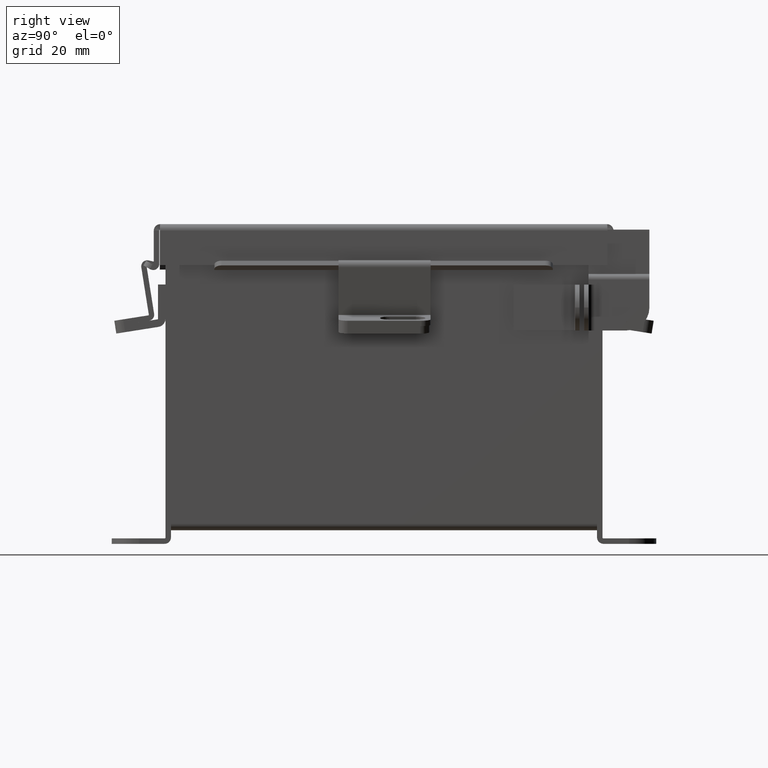
[diagram: clean part render]
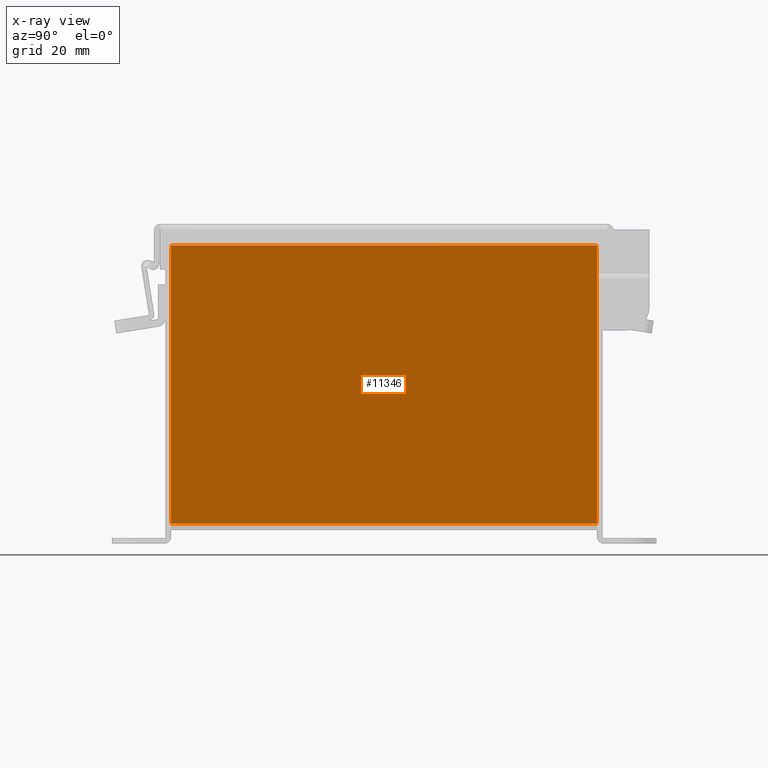
[diagram: x-ray — body ghosted, one internal face saturated and labeled with its STEP entity id]
A machine part, right view, then the same camera in x-ray: the body is ghosted and one INTERNAL B-rep face — a face not visible from any outside direction — is saturated and labeled: STEP entity #11346.
In plain terms, the highlighted planar face has unit normal (-1, 0, 0).
Its self-contained STEP definition (entity closure, byte-faithful):
#168 = DIRECTION ( 'NONE',  ( -1.000000000000000000, 0.0000000000000000000, 3.476355676765930200E-015 ) ) ;
#1407 = EDGE_CURVE ( 'NONE', #2479, #11766, #8981, .T. ) ;
#1648 = LINE ( 'NONE', #8946, #13165 ) ;
#1693 = LINE ( 'NONE', #9335, #10360 ) ;
#2449 = DIRECTION ( 'NONE',  ( 3.476355676765930200E-015, -2.837841368788514100E-016, 1.000000000000000000 ) ) ;
#2479 = VERTEX_POINT ( 'NONE', #8390 ) ;
#2672 = DIRECTION ( 'NONE',  ( -3.476355676765930200E-015, -0.0000000000000000000, -1.000000000000000000 ) ) ;
#2828 = DIRECTION ( 'NONE',  ( 0.0000000000000000000, 1.000000000000000000, 0.0000000000000000000 ) ) ;
#3704 = CARTESIAN_POINT ( 'NONE',  ( 1.925300000000013600, 2.925299999999998200, 3.837599999999999700 ) ) ;
#3970 = CARTESIAN_POINT ( 'NONE',  ( 1.925299999999999600, 2.925299999999999100, 0.01299999999999983500 ) ) ;
#4287 = AXIS2_PLACEMENT_3D ( 'NONE', #13199, #168, #7819 ) ;
#4461 = VECTOR ( 'NONE', #4806, 39.37007874015748100 ) ;
#4806 = DIRECTION ( 'NONE',  ( -0.0000000000000000000, -1.000000000000000000, -0.0000000000000000000 ) ) ;
#4859 = CARTESIAN_POINT ( 'NONE',  ( 1.925300000000012900, 2.925299999999998200, 3.837599999999999700 ) ) ;
#5416 = ORIENTED_EDGE ( 'NONE', *, *, #11879, .F. ) ;
#5647 = PLANE ( 'NONE',  #4287 ) ;
#6126 = VECTOR ( 'NONE', #2672, 39.37007874015748100 ) ;
#6566 = ORIENTED_EDGE ( 'NONE', *, *, #10284, .F. ) ;
#7356 = LINE ( 'NONE', #3704, #4461 ) ;
#7448 = FACE_OUTER_BOUND ( 'NONE', #9316, .T. ) ;
#7679 = EDGE_CURVE ( 'NONE', #13405, #2479, #7356, .T. ) ;
#7729 = ORIENTED_EDGE ( 'NONE', *, *, #1407, .F. ) ;
#7819 = DIRECTION ( 'NONE',  ( 3.476355676765930200E-015, 0.0000000000000000000, 1.000000000000000000 ) ) ;
#8390 = CARTESIAN_POINT ( 'NONE',  ( 1.925300000000013600, -2.925300000000000500, 3.837599999999999700 ) ) ;
#8937 = VERTEX_POINT ( 'NONE', #3970 ) ;
#8946 = CARTESIAN_POINT ( 'NONE',  ( 1.925300000000012900, 2.925299999999998200, 3.850600000000000000 ) ) ;
#8981 = LINE ( 'NONE', #9162, #6126 ) ;
#9162 = CARTESIAN_POINT ( 'NONE',  ( 1.925299999999999600, -2.925300000000000500, -1.129886957167445000E-018 ) ) ;
#9316 = EDGE_LOOP ( 'NONE', ( #7729, #12515, #5416, #6566 ) ) ;
#9335 = CARTESIAN_POINT ( 'NONE',  ( 1.925299999999999600, -2.925300000000000500, 0.01299999999999983500 ) ) ;
#10284 = EDGE_CURVE ( 'NONE', #11766, #8937, #1693, .T. ) ;
#10360 = VECTOR ( 'NONE', #2828, 39.37007874015748100 ) ;
#11346 = ADVANCED_FACE ( 'NONE', ( #7448 ), #5647, .T. ) ;
#11766 = VERTEX_POINT ( 'NONE', #11785 ) ;
#11785 = CARTESIAN_POINT ( 'NONE',  ( 1.925299999999999600, -2.925300000000000500, 0.01299999999999983500 ) ) ;
#11879 = EDGE_CURVE ( 'NONE', #8937, #13405, #1648, .T. ) ;
#12515 = ORIENTED_EDGE ( 'NONE', *, *, #7679, .F. ) ;
#13165 = VECTOR ( 'NONE', #2449, 39.37007874015748100 ) ;
#13199 = CARTESIAN_POINT ( 'NONE',  ( 1.925299999999999600, 0.0000000000000000000, -6.952711353531857200E-015 ) ) ;
#13405 = VERTEX_POINT ( 'NONE', #4859 ) ;